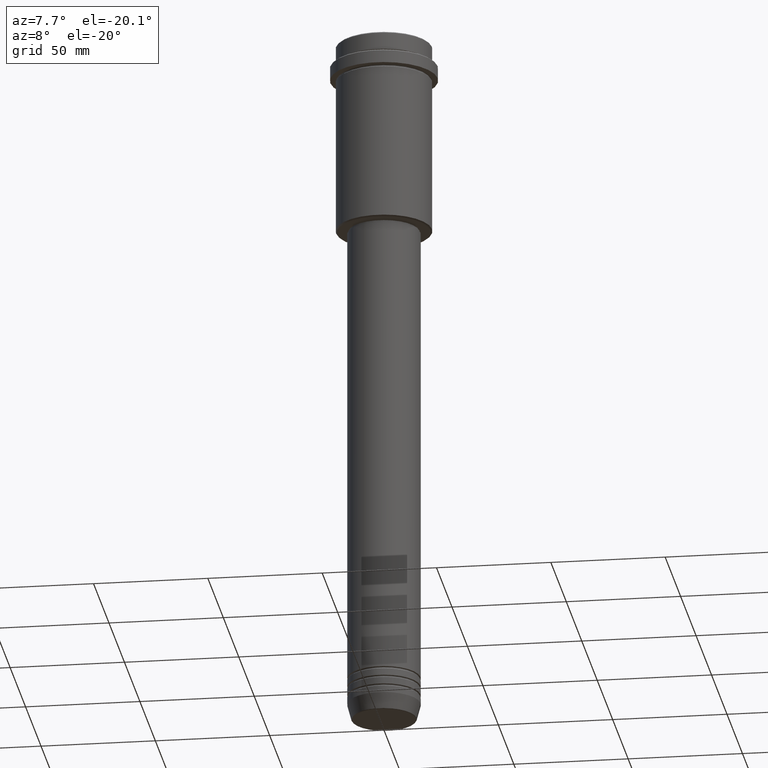
[diagram: clean part render]
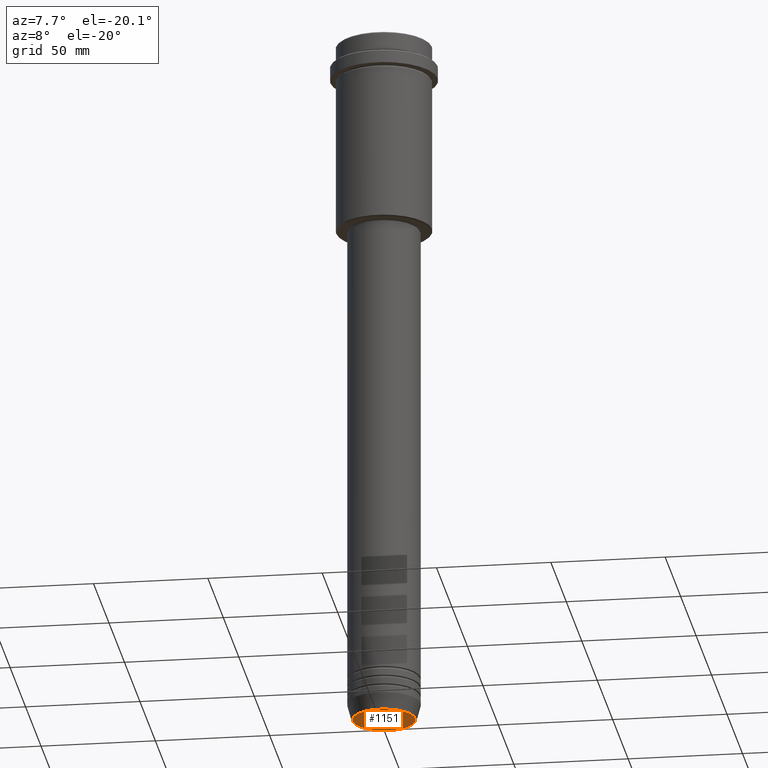
[diagram: same view with one face highlighted and labeled with its STEP entity id]
A machine part, auxiliary view. The second image highlights one B-rep face of the part: STEP entity #1151.
In plain terms, the highlighted planar face has unit normal (0, -0, 1).
Its self-contained STEP definition (entity closure, byte-faithful):
#27 = CARTESIAN_POINT ( 'NONE',  ( 13.74069215899265828, 0.000000000000000000, -310.0000000000000000 ) ) ;
#87 = CIRCLE ( 'NONE', #905, 13.74069215899265828 ) ;
#95 = EDGE_CURVE ( 'NONE', #1307, #423, #1326, .T. ) ;
#151 = DIRECTION ( 'NONE',  ( 0.000000000000000000, -0.000000000000000000, 1.000000000000000000 ) ) ;
#197 = ORIENTED_EDGE ( 'NONE', *, *, #704, .T. ) ;
#258 = PLANE ( 'NONE',  #1379 ) ;
#346 = CARTESIAN_POINT ( 'NONE',  ( -13.74069215899265828, 1.712322416342415986E-15, -310.0000000000000000 ) ) ;
#413 = DIRECTION ( 'NONE',  ( 1.000000000000000000, 0.000000000000000000, 0.000000000000000000 ) ) ;
#423 = VERTEX_POINT ( 'NONE', #27 ) ;
#507 = DIRECTION ( 'NONE',  ( 1.000000000000000000, 0.000000000000000000, 0.000000000000000000 ) ) ;
#704 = EDGE_CURVE ( 'NONE', #423, #1307, #87, .T. ) ;
#711 = CARTESIAN_POINT ( 'NONE',  ( 0.000000000000000000, 0.000000000000000000, -310.0000000000000000 ) ) ;
#905 = AXIS2_PLACEMENT_3D ( 'NONE', #1166, #1060, #1277 ) ;
#915 = FACE_OUTER_BOUND ( 'NONE', #1343, .T. ) ;
#932 = CARTESIAN_POINT ( 'NONE',  ( 0.000000000000000000, 0.000000000000000000, -310.0000000000000000 ) ) ;
#973 = AXIS2_PLACEMENT_3D ( 'NONE', #932, #1258, #507 ) ;
#1058 = ORIENTED_EDGE ( 'NONE', *, *, #95, .T. ) ;
#1060 = DIRECTION ( 'NONE',  ( 0.000000000000000000, 0.000000000000000000, -1.000000000000000000 ) ) ;
#1151 = ADVANCED_FACE ( 'NONE', ( #915 ), #258, .F. ) ;
#1166 = CARTESIAN_POINT ( 'NONE',  ( 0.000000000000000000, 0.000000000000000000, -310.0000000000000000 ) ) ;
#1258 = DIRECTION ( 'NONE',  ( 0.000000000000000000, 0.000000000000000000, -1.000000000000000000 ) ) ;
#1277 = DIRECTION ( 'NONE',  ( 1.000000000000000000, 0.000000000000000000, 0.000000000000000000 ) ) ;
#1307 = VERTEX_POINT ( 'NONE', #346 ) ;
#1326 = CIRCLE ( 'NONE', #973, 13.74069215899265828 ) ;
#1343 = EDGE_LOOP ( 'NONE', ( #197, #1058 ) ) ;
#1379 = AXIS2_PLACEMENT_3D ( 'NONE', #711, #151, #413 ) ;